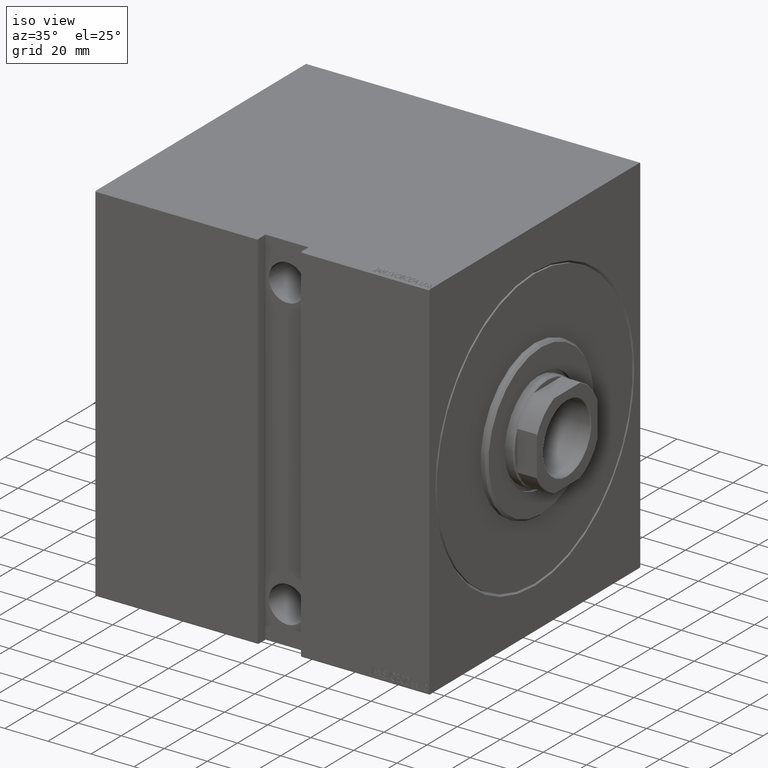
[diagram: clean part render]
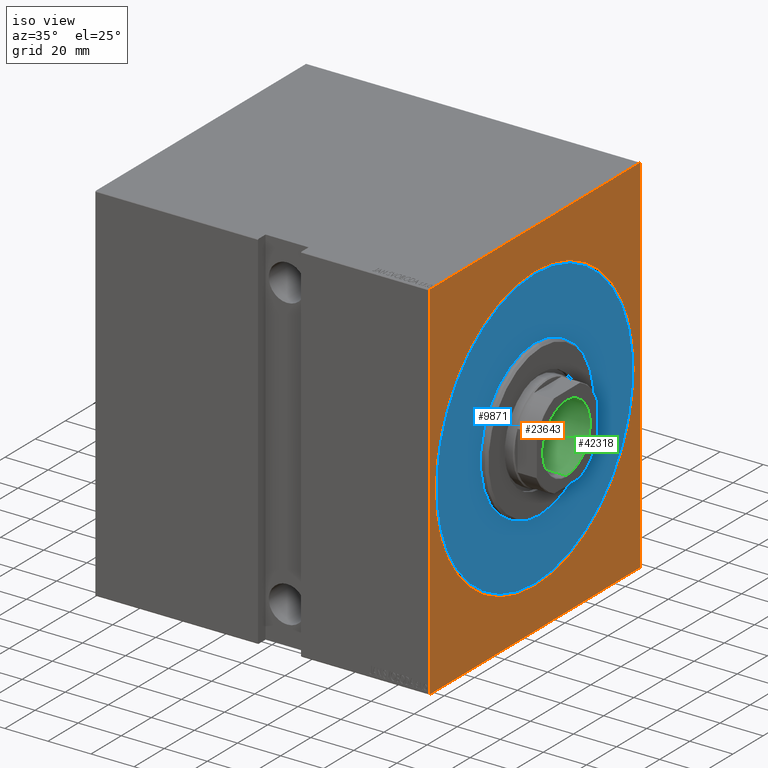
[diagram: same view with three faces highlighted in distinct colors, each labeled with its STEP entity id]
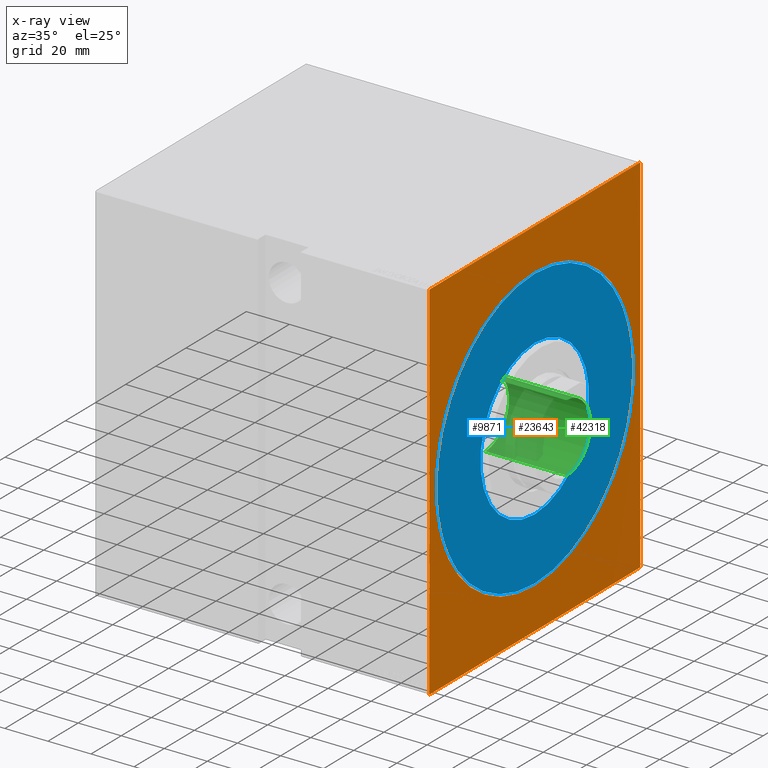
[diagram: x-ray of the same camera — body ghosted, the three highlighted faces saturated]
A machine part, iso view with three faces highlighted in distinct colors.
The next image is the same camera in x-ray (body ghosted, the three faces saturated) — at least one of them is partly hidden behind the body in this view.
Their STEP definitions:

[orange] entity #23643 — the highlighted planar face has unit normal (-1, 0, 0).
#284 = DIRECTION ( 'NONE',  ( -0.000000000000000000, 0.7071067811865638930, 0.7071067811865311414 ) ) ;
#336 = EDGE_CURVE ( 'NONE', #21869, #3751, #24289, .T. ) ;
#855 = CIRCLE ( 'NONE', #21605, 65.99999999999994316 ) ;
#1229 = CARTESIAN_POINT ( 'NONE',  ( 0.000000000000000000, -69.99999999999998579, 84.70000000000004547 ) ) ;
#1744 = EDGE_LOOP ( 'NONE', ( #34955, #36245, #31121, #11322, #7747, #31616, #29646, #2113 ) ) ;
#2091 = CARTESIAN_POINT ( 'NONE',  ( 0.000000000000000000, -69.99999999999998579, -85.00000000000000000 ) ) ;
#2113 = ORIENTED_EDGE ( 'NONE', *, *, #20447, .T. ) ;
#2137 = VECTOR ( 'NONE', #284, 1000.000000000000000 ) ;
#2504 = LINE ( 'NONE', #42330, #39932 ) ;
#3474 = DIRECTION ( 'NONE',  ( 1.000000000000000000, 0.000000000000000000, -0.000000000000000000 ) ) ;
#3751 = VERTEX_POINT ( 'NONE', #40346 ) ;
#3898 = DIRECTION ( 'NONE',  ( 0.000000000000000000, 0.000000000000000000, -1.000000000000000000 ) ) ;
#3997 = CARTESIAN_POINT ( 'NONE',  ( 0.000000000000000000, 70.00000000000002842, -84.70000000000001705 ) ) ;
#4646 = VECTOR ( 'NONE', #36968, 1000.000000000000114 ) ;
#5663 = AXIS2_PLACEMENT_3D ( 'NONE', #8926, #11744, #34470 ) ;
#5866 = CARTESIAN_POINT ( 'NONE',  ( 0.000000000000000000, 70.00000000000002842, 84.70000000000007390 ) ) ;
#7402 = CARTESIAN_POINT ( 'NONE',  ( 0.000000000000000000, 70.00000000000002842, -85.00000000000000000 ) ) ;
#7747 = ORIENTED_EDGE ( 'NONE', *, *, #35023, .F. ) ;
#8077 = FACE_BOUND ( 'NONE', #30715, .T. ) ;
#8222 = ORIENTED_EDGE ( 'NONE', *, *, #30112, .T. ) ;
#8360 = CARTESIAN_POINT ( 'NONE',  ( 0.000000000000000000, 70.00000000000002842, -84.70000000000001705 ) ) ;
#8926 = CARTESIAN_POINT ( 'NONE',  ( 0.000000000000000000, 0.000000000000000000, 0.000000000000000000 ) ) ;
#9525 = VERTEX_POINT ( 'NONE', #5866 ) ;
#10058 = EDGE_CURVE ( 'NONE', #21869, #9525, #40198, .T. ) ;
#10656 = LINE ( 'NONE', #7402, #20635 ) ;
#11215 = EDGE_CURVE ( 'NONE', #12874, #34569, #2504, .T. ) ;
#11322 = ORIENTED_EDGE ( 'NONE', *, *, #42434, .T. ) ;
#11744 = DIRECTION ( 'NONE',  ( 1.000000000000000000, 0.000000000000000000, -0.000000000000000000 ) ) ;
#12644 = CARTESIAN_POINT ( 'NONE',  ( 0.000000000000000000, 0.000000000000000000, 65.99999999999994316 ) ) ;
#12874 = VERTEX_POINT ( 'NONE', #24872 ) ;
#13231 = VERTEX_POINT ( 'NONE', #1229 ) ;
#13429 = CARTESIAN_POINT ( 'NONE',  ( 0.000000000000000000, 0.000000000000000000, 0.000000000000000000 ) ) ;
#13562 = EDGE_CURVE ( 'NONE', #27353, #9525, #10656, .T. ) ;
#14000 = CARTESIAN_POINT ( 'NONE',  ( 0.000000000000000000, 69.70000000000007390, 85.00000000000001421 ) ) ;
#14269 = CARTESIAN_POINT ( 'NONE',  ( 0.000000000000000000, 69.70000000000007390, 85.00000000000001421 ) ) ;
#14646 = VECTOR ( 'NONE', #40946, 1000.000000000000000 ) ;
#16729 = LINE ( 'NONE', #19777, #2137 ) ;
#17346 = AXIS2_PLACEMENT_3D ( 'NONE', #31516, #18944, #34754 ) ;
#17637 = DIRECTION ( 'NONE',  ( 0.000000000000000000, 0.000000000000000000, -1.000000000000000000 ) ) ;
#18811 = CARTESIAN_POINT ( 'NONE',  ( 0.000000000000000000, -69.99999999999998579, -84.69999999999998863 ) ) ;
#18944 = DIRECTION ( 'NONE',  ( 1.000000000000000000, 0.000000000000000000, -0.000000000000000000 ) ) ;
#18966 = DIRECTION ( 'NONE',  ( 0.000000000000000000, 1.000000000000000000, 0.000000000000000000 ) ) ;
#19562 = VECTOR ( 'NONE', #20232, 1000.000000000000114 ) ;
#19573 = VERTEX_POINT ( 'NONE', #12644 ) ;
#19738 = VERTEX_POINT ( 'NONE', #41177 ) ;
#19777 = CARTESIAN_POINT ( 'NONE',  ( 0.000000000000000000, -69.99999999999998579, 84.70000000000004547 ) ) ;
#20020 = LINE ( 'NONE', #3997, #19562 ) ;
#20232 = DIRECTION ( 'NONE',  ( -0.000000000000000000, -0.7071067811865965336, -0.7071067811864985009 ) ) ;
#20447 = EDGE_CURVE ( 'NONE', #13231, #3751, #16729, .T. ) ;
#20599 = DIRECTION ( 'NONE',  ( 0.000000000000000000, 0.000000000000000000, 1.000000000000000000 ) ) ;
#20635 = VECTOR ( 'NONE', #20599, 1000.000000000000000 ) ;
#21033 = CARTESIAN_POINT ( 'NONE',  ( 0.000000000000000000, 70.00000000000002842, 85.00000000000001421 ) ) ;
#21267 = PLANE ( 'NONE',  #5663 ) ;
#21605 = AXIS2_PLACEMENT_3D ( 'NONE', #13429, #3474, #3898 ) ;
#21869 = VERTEX_POINT ( 'NONE', #14269 ) ;
#23265 = CARTESIAN_POINT ( 'NONE',  ( 0.000000000000000000, 8.082668874372526089E-15, -65.99999999999994316 ) ) ;
#23643 = ADVANCED_FACE ( 'NONE', ( #8077, #41402 ), #21267, .F. ) ;
#24038 = EDGE_CURVE ( 'NONE', #13231, #34569, #34319, .T. ) ;
#24153 = CARTESIAN_POINT ( 'NONE',  ( 0.000000000000000000, -69.99999999999998579, 85.00000000000000000 ) ) ;
#24289 = LINE ( 'NONE', #21033, #14646 ) ;
#24512 = VECTOR ( 'NONE', #18966, 1000.000000000000000 ) ;
#24872 = CARTESIAN_POINT ( 'NONE',  ( 0.000000000000000000, -69.70000000000000284, -85.00000000000000000 ) ) ;
#26486 = EDGE_CURVE ( 'NONE', #27467, #19573, #40848, .T. ) ;
#27353 = VERTEX_POINT ( 'NONE', #8360 ) ;
#27467 = VERTEX_POINT ( 'NONE', #23265 ) ;
#29646 = ORIENTED_EDGE ( 'NONE', *, *, #24038, .F. ) ;
#30112 = EDGE_CURVE ( 'NONE', #19573, #27467, #855, .T. ) ;
#30715 = EDGE_LOOP ( 'NONE', ( #8222, #40652 ) ) ;
#31121 = ORIENTED_EDGE ( 'NONE', *, *, #13562, .F. ) ;
#31516 = CARTESIAN_POINT ( 'NONE',  ( 0.000000000000000000, 0.000000000000000000, 0.000000000000000000 ) ) ;
#31616 = ORIENTED_EDGE ( 'NONE', *, *, #11215, .T. ) ;
#34319 = LINE ( 'NONE', #24153, #42225 ) ;
#34470 = DIRECTION ( 'NONE',  ( -0.000000000000000000, 0.000000000000000000, -1.000000000000000000 ) ) ;
#34569 = VERTEX_POINT ( 'NONE', #18811 ) ;
#34754 = DIRECTION ( 'NONE',  ( 0.000000000000000000, 0.000000000000000000, -1.000000000000000000 ) ) ;
#34955 = ORIENTED_EDGE ( 'NONE', *, *, #336, .F. ) ;
#35023 = EDGE_CURVE ( 'NONE', #12874, #19738, #38679, .T. ) ;
#36245 = ORIENTED_EDGE ( 'NONE', *, *, #10058, .T. ) ;
#36968 = DIRECTION ( 'NONE',  ( -0.000000000000000000, 0.7071067811865638930, -0.7071067811865312525 ) ) ;
#38679 = LINE ( 'NONE', #2091, #24512 ) ;
#38877 = DIRECTION ( 'NONE',  ( 0.000000000000000000, -0.7071067811865149322, 0.7071067811865802133 ) ) ;
#39932 = VECTOR ( 'NONE', #38877, 999.9999999999998863 ) ;
#40198 = LINE ( 'NONE', #14000, #4646 ) ;
#40346 = CARTESIAN_POINT ( 'NONE',  ( 0.000000000000000000, -69.70000000000001705, 85.00000000000000000 ) ) ;
#40652 = ORIENTED_EDGE ( 'NONE', *, *, #26486, .T. ) ;
#40848 = CIRCLE ( 'NONE', #17346, 65.99999999999994316 ) ;
#40946 = DIRECTION ( 'NONE',  ( 0.000000000000000000, -1.000000000000000000, -9.912705577010325549E-17 ) ) ;
#41177 = CARTESIAN_POINT ( 'NONE',  ( 0.000000000000000000, 69.70000000000000284, -85.00000000000000000 ) ) ;
#41402 = FACE_OUTER_BOUND ( 'NONE', #1744, .T. ) ;
#42225 = VECTOR ( 'NONE', #17637, 1000.000000000000000 ) ;
#42330 = CARTESIAN_POINT ( 'NONE',  ( 0.000000000000000000, -69.70000000000000284, -85.00000000000000000 ) ) ;
#42434 = EDGE_CURVE ( 'NONE', #27353, #19738, #20020, .T. ) ;

[blue] entity #9871 — the highlighted planar face has unit normal (1, 0, 0).
#1064 = EDGE_CURVE ( 'NONE', #11473, #40386, #11911, .T. ) ;
#1311 = EDGE_LOOP ( 'NONE', ( #20890, #15626 ) ) ;
#2117 = ORIENTED_EDGE ( 'NONE', *, *, #7748, .T. ) ;
#4969 = DIRECTION ( 'NONE',  ( 1.000000000000000000, 0.000000000000000000, 0.000000000000000000 ) ) ;
#5802 = CARTESIAN_POINT ( 'NONE',  ( 0.000000000000000000, 0.000000000000000000, 36.00000000000000000 ) ) ;
#6224 = ORIENTED_EDGE ( 'NONE', *, *, #31669, .T. ) ;
#6384 = EDGE_CURVE ( 'NONE', #40386, #11473, #11425, .T. ) ;
#7748 = EDGE_CURVE ( 'NONE', #37740, #34049, #28892, .T. ) ;
#8418 = DIRECTION ( 'NONE',  ( 0.000000000000000000, 0.000000000000000000, -1.000000000000000000 ) ) ;
#9871 = ADVANCED_FACE ( 'NONE', ( #21836, #37860 ), #22043, .T. ) ;
#10747 = AXIS2_PLACEMENT_3D ( 'NONE', #19761, #16711, #19546 ) ;
#11425 = CIRCLE ( 'NONE', #10747, 36.00000000000000000 ) ;
#11473 = VERTEX_POINT ( 'NONE', #16968 ) ;
#11911 = CIRCLE ( 'NONE', #15355, 36.00000000000000000 ) ;
#12092 = DIRECTION ( 'NONE',  ( 1.000000000000000000, 0.000000000000000000, 0.000000000000000000 ) ) ;
#13316 = AXIS2_PLACEMENT_3D ( 'NONE', #37788, #24364, #17845 ) ;
#15355 = AXIS2_PLACEMENT_3D ( 'NONE', #28623, #37719, #41822 ) ;
#15626 = ORIENTED_EDGE ( 'NONE', *, *, #1064, .F. ) ;
#16711 = DIRECTION ( 'NONE',  ( 1.000000000000000000, -0.000000000000000000, 0.000000000000000000 ) ) ;
#16968 = CARTESIAN_POINT ( 'NONE',  ( 0.000000000000000000, 4.408728476930470856E-15, -36.00000000000000000 ) ) ;
#17115 = EDGE_LOOP ( 'NONE', ( #2117, #6224 ) ) ;
#17118 = AXIS2_PLACEMENT_3D ( 'NONE', #17305, #4969, #30530 ) ;
#17305 = CARTESIAN_POINT ( 'NONE',  ( 0.000000000000000000, 0.000000000000000000, 0.000000000000000000 ) ) ;
#17845 = DIRECTION ( 'NONE',  ( 0.000000000000000000, 0.000000000000000000, -1.000000000000000000 ) ) ;
#19546 = DIRECTION ( 'NONE',  ( 0.000000000000000000, 0.000000000000000000, -1.000000000000000000 ) ) ;
#19761 = CARTESIAN_POINT ( 'NONE',  ( 0.000000000000000000, 0.000000000000000000, 0.000000000000000000 ) ) ;
#20890 = ORIENTED_EDGE ( 'NONE', *, *, #6384, .F. ) ;
#21836 = FACE_OUTER_BOUND ( 'NONE', #17115, .T. ) ;
#22043 = PLANE ( 'NONE',  #23309 ) ;
#23309 = AXIS2_PLACEMENT_3D ( 'NONE', #38721, #12092, #8418 ) ;
#24364 = DIRECTION ( 'NONE',  ( 1.000000000000000000, 0.000000000000000000, 0.000000000000000000 ) ) ;
#26490 = CARTESIAN_POINT ( 'NONE',  ( 0.000000000000000000, 7.960204194457797252E-15, 65.00000000000000000 ) ) ;
#28623 = CARTESIAN_POINT ( 'NONE',  ( 0.000000000000000000, 0.000000000000000000, 0.000000000000000000 ) ) ;
#28892 = CIRCLE ( 'NONE', #17118, 65.00000000000000000 ) ;
#30530 = DIRECTION ( 'NONE',  ( 0.000000000000000000, 0.000000000000000000, -1.000000000000000000 ) ) ;
#31669 = EDGE_CURVE ( 'NONE', #34049, #37740, #31995, .T. ) ;
#31995 = CIRCLE ( 'NONE', #13316, 65.00000000000000000 ) ;
#34049 = VERTEX_POINT ( 'NONE', #26490 ) ;
#34365 = CARTESIAN_POINT ( 'NONE',  ( 0.000000000000000000, 0.000000000000000000, -65.00000000000000000 ) ) ;
#37719 = DIRECTION ( 'NONE',  ( 1.000000000000000000, -0.000000000000000000, 0.000000000000000000 ) ) ;
#37740 = VERTEX_POINT ( 'NONE', #34365 ) ;
#37788 = CARTESIAN_POINT ( 'NONE',  ( 0.000000000000000000, 0.000000000000000000, 0.000000000000000000 ) ) ;
#37860 = FACE_BOUND ( 'NONE', #1311, .T. ) ;
#38721 = CARTESIAN_POINT ( 'NONE',  ( 0.000000000000000000, 0.000000000000000000, 0.000000000000000000 ) ) ;
#40386 = VERTEX_POINT ( 'NONE', #5802 ) ;
#41822 = DIRECTION ( 'NONE',  ( 0.000000000000000000, 0.000000000000000000, -1.000000000000000000 ) ) ;

[green] entity #42318 — the highlighted cylindrical surface (partial cylindrical patch) has radius 15.75 mm, axis along (1, 0, -0).
#1494 = FACE_OUTER_BOUND ( 'NONE', #30316, .T. ) ;
#1618 = DIRECTION ( 'NONE',  ( 0.000000000000000000, 0.000000000000000000, 1.000000000000000000 ) ) ;
#4275 = CARTESIAN_POINT ( 'NONE',  ( -15.74999999999999289, 1.928818708657080556E-15, 106.0000000000000142 ) ) ;
#5078 = CIRCLE ( 'NONE', #7868, 15.74999999999999289 ) ;
#5317 = EDGE_CURVE ( 'NONE', #29547, #30369, #5078, .T. ) ;
#6397 = EDGE_CURVE ( 'NONE', #30369, #6791, #33604, .T. ) ;
#6791 = VERTEX_POINT ( 'NONE', #12319 ) ;
#7854 = CIRCLE ( 'NONE', #25133, 15.74999999999999289 ) ;
#7868 = AXIS2_PLACEMENT_3D ( 'NONE', #30834, #40996, #20441 ) ;
#7970 = VECTOR ( 'NONE', #26266, 1000.000000000000000 ) ;
#8207 = DIRECTION ( 'NONE',  ( -0.000000000000000000, -0.000000000000000000, 1.000000000000000000 ) ) ;
#8338 = ORIENTED_EDGE ( 'NONE', *, *, #5317, .F. ) ;
#9756 = CARTESIAN_POINT ( 'NONE',  ( 15.74999999999999289, 0.000000000000000000, 143.6999999999999602 ) ) ;
#11623 = EDGE_CURVE ( 'NONE', #29547, #13609, #39038, .T. ) ;
#12319 = CARTESIAN_POINT ( 'NONE',  ( -15.74999999999999289, 1.928818708657080556E-15, 143.6999999999999602 ) ) ;
#12622 = DIRECTION ( 'NONE',  ( -0.000000000000000000, -0.000000000000000000, 1.000000000000000000 ) ) ;
#12826 = ORIENTED_EDGE ( 'NONE', *, *, #32872, .T. ) ;
#13609 = VERTEX_POINT ( 'NONE', #9756 ) ;
#14087 = ORIENTED_EDGE ( 'NONE', *, *, #11623, .T. ) ;
#14689 = CYLINDRICAL_SURFACE ( 'NONE', #32702, 15.74999999999999289 ) ;
#19172 = DIRECTION ( 'NONE',  ( 1.000000000000000000, 0.000000000000000000, 0.000000000000000000 ) ) ;
#20441 = DIRECTION ( 'NONE',  ( 1.000000000000000000, 0.000000000000000000, 0.000000000000000000 ) ) ;
#20455 = DIRECTION ( 'NONE',  ( 1.000000000000000000, 0.000000000000000000, 0.000000000000000000 ) ) ;
#25133 = AXIS2_PLACEMENT_3D ( 'NONE', #41009, #1618, #20455 ) ;
#26266 = DIRECTION ( 'NONE',  ( -0.000000000000000000, -0.000000000000000000, 1.000000000000000000 ) ) ;
#29547 = VERTEX_POINT ( 'NONE', #29991 ) ;
#29991 = CARTESIAN_POINT ( 'NONE',  ( 15.74999999999999289, 0.000000000000000000, 106.0000000000000142 ) ) ;
#30316 = EDGE_LOOP ( 'NONE', ( #36945, #8338, #14087, #12826 ) ) ;
#30369 = VERTEX_POINT ( 'NONE', #4275 ) ;
#30834 = CARTESIAN_POINT ( 'NONE',  ( 0.000000000000000000, 0.000000000000000000, 106.0000000000000142 ) ) ;
#32702 = AXIS2_PLACEMENT_3D ( 'NONE', #41105, #8207, #19172 ) ;
#32872 = EDGE_CURVE ( 'NONE', #13609, #6791, #7854, .T. ) ;
#33604 = LINE ( 'NONE', #42722, #7970 ) ;
#36214 = CARTESIAN_POINT ( 'NONE',  ( 15.74999999999999289, 0.000000000000000000, 144.0000000000000284 ) ) ;
#36945 = ORIENTED_EDGE ( 'NONE', *, *, #6397, .F. ) ;
#39038 = LINE ( 'NONE', #36214, #42016 ) ;
#40996 = DIRECTION ( 'NONE',  ( -0.000000000000000000, -0.000000000000000000, 1.000000000000000000 ) ) ;
#41009 = CARTESIAN_POINT ( 'NONE',  ( 0.000000000000000000, 0.000000000000000000, 143.6999999999999602 ) ) ;
#41105 = CARTESIAN_POINT ( 'NONE',  ( 0.000000000000000000, 0.000000000000000000, 144.0000000000000284 ) ) ;
#42016 = VECTOR ( 'NONE', #12622, 1000.000000000000000 ) ;
#42318 = ADVANCED_FACE ( 'NONE', ( #1494 ), #14689, .F. ) ;
#42722 = CARTESIAN_POINT ( 'NONE',  ( -15.74999999999999289, 1.928818708657080556E-15, 144.0000000000000284 ) ) ;